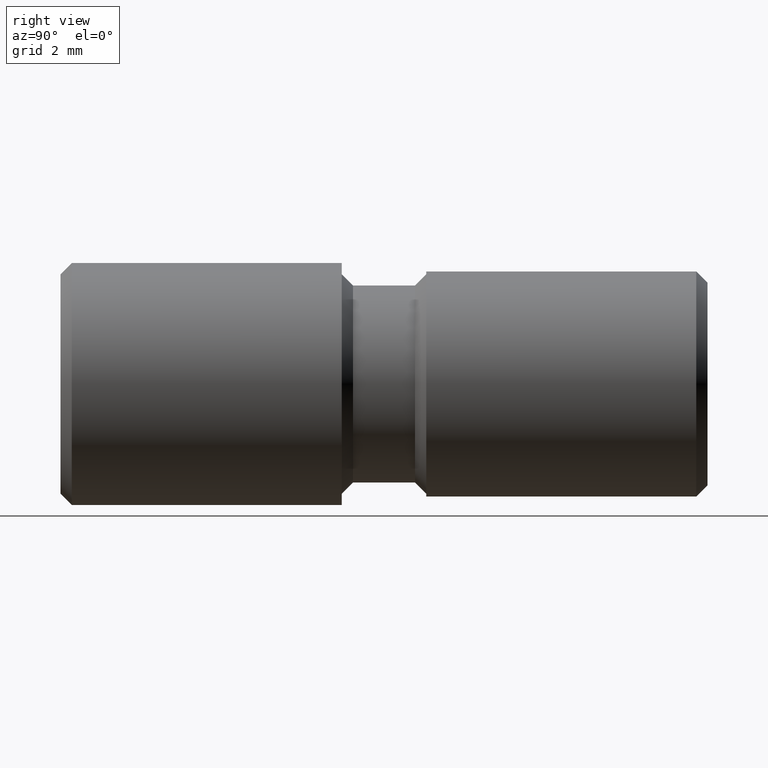
[diagram: clean part render]
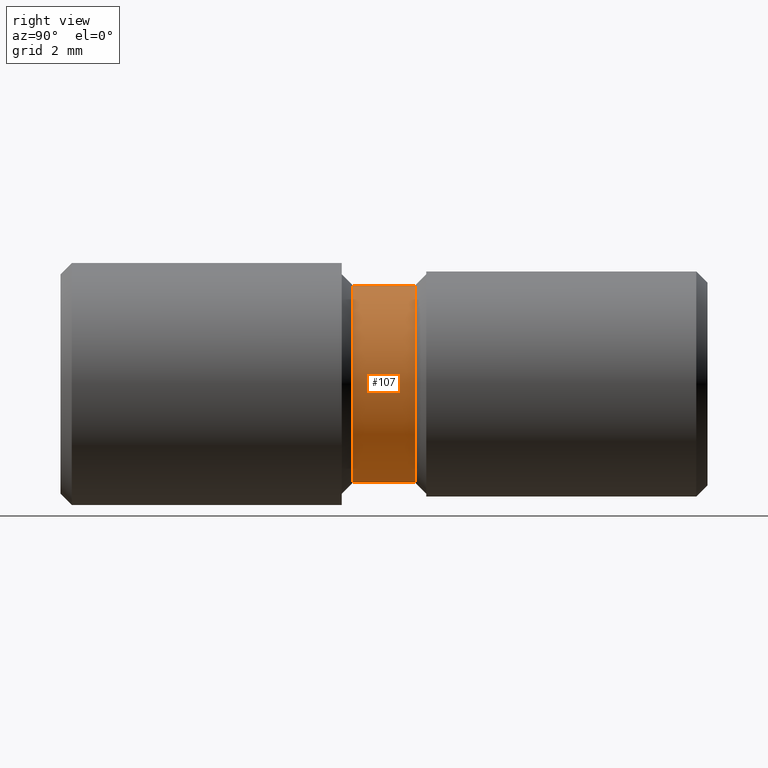
[diagram: same view with one face highlighted and labeled with its STEP entity id]
A machine part, right view. The second image highlights one B-rep face of the part: STEP entity #107.
In plain terms, the highlighted cylindrical surface (partial cylindrical patch) has radius 1.75 mm, axis along (-0, -1, -0).
Its self-contained STEP definition (entity closure, byte-faithful):
#31 = DIRECTION ( 'NONE',  ( 0.0000000000000000000, 0.0000000000000000000, -1.000000000000000000 ) ) ;
#58 = AXIS2_PLACEMENT_3D ( 'NONE', #720, #205, #942 ) ;
#86 = CARTESIAN_POINT ( 'NONE',  ( 0.0000000000000000000, 5.200000000000002800, 0.0000000000000000000 ) ) ;
#107 = ADVANCED_FACE ( 'NONE', ( #135 ), #211, .T. ) ;
#110 = CARTESIAN_POINT ( 'NONE',  ( 0.0000000000000000000, 6.300000000000001600, -1.750000000000000000 ) ) ;
#120 = ORIENTED_EDGE ( 'NONE', *, *, #946, .F. ) ;
#128 = VERTEX_POINT ( 'NONE', #110 ) ;
#135 = FACE_OUTER_BOUND ( 'NONE', #863, .T. ) ;
#154 = CARTESIAN_POINT ( 'NONE',  ( 0.0000000000000000000, 6.500000000000000900, 0.0000000000000000000 ) ) ;
#163 = CARTESIAN_POINT ( 'NONE',  ( 0.0000000000000000000, 6.500000000000000900, -1.750000000000000000 ) ) ;
#169 = CARTESIAN_POINT ( 'NONE',  ( 2.143131898507868300E-016, 5.200000000000002800, 1.750000000000000000 ) ) ;
#205 = DIRECTION ( 'NONE',  ( 0.0000000000000000000, -1.000000000000000000, 0.0000000000000000000 ) ) ;
#208 = CARTESIAN_POINT ( 'NONE',  ( 2.143131898507868300E-016, 6.300000000000001600, 1.750000000000000000 ) ) ;
#211 = CYLINDRICAL_SURFACE ( 'NONE', #501, 1.750000000000000000 ) ;
#284 = ORIENTED_EDGE ( 'NONE', *, *, #419, .T. ) ;
#308 = DIRECTION ( 'NONE',  ( 0.0000000000000000000, 0.0000000000000000000, 1.000000000000000000 ) ) ;
#311 = VERTEX_POINT ( 'NONE', #353 ) ;
#351 = EDGE_CURVE ( 'NONE', #436, #640, #474, .T. ) ;
#353 = CARTESIAN_POINT ( 'NONE',  ( 0.0000000000000000000, 5.200000000000002800, -1.750000000000000000 ) ) ;
#384 = DIRECTION ( 'NONE',  ( -0.0000000000000000000, 1.000000000000000000, -0.0000000000000000000 ) ) ;
#412 = DIRECTION ( 'NONE',  ( -0.0000000000000000000, -1.000000000000000000, -0.0000000000000000000 ) ) ;
#419 = EDGE_CURVE ( 'NONE', #128, #436, #618, .T. ) ;
#436 = VERTEX_POINT ( 'NONE', #208 ) ;
#474 = LINE ( 'NONE', #772, #862 ) ;
#491 = VECTOR ( 'NONE', #596, 1000.000000000000000 ) ;
#501 = AXIS2_PLACEMENT_3D ( 'NONE', #154, #917, #31 ) ;
#502 = ORIENTED_EDGE ( 'NONE', *, *, #864, .T. ) ;
#571 = AXIS2_PLACEMENT_3D ( 'NONE', #86, #384, #308 ) ;
#584 = CIRCLE ( 'NONE', #571, 1.750000000000000000 ) ;
#596 = DIRECTION ( 'NONE',  ( -0.0000000000000000000, -1.000000000000000000, -0.0000000000000000000 ) ) ;
#618 = CIRCLE ( 'NONE', #58, 1.750000000000000000 ) ;
#640 = VERTEX_POINT ( 'NONE', #169 ) ;
#646 = LINE ( 'NONE', #163, #491 ) ;
#720 = CARTESIAN_POINT ( 'NONE',  ( 0.0000000000000000000, 6.300000000000001600, 0.0000000000000000000 ) ) ;
#772 = CARTESIAN_POINT ( 'NONE',  ( 2.143131898507868300E-016, 6.500000000000000900, 1.750000000000000000 ) ) ;
#827 = ORIENTED_EDGE ( 'NONE', *, *, #351, .T. ) ;
#862 = VECTOR ( 'NONE', #412, 1000.000000000000000 ) ;
#863 = EDGE_LOOP ( 'NONE', ( #284, #827, #502, #120 ) ) ;
#864 = EDGE_CURVE ( 'NONE', #640, #311, #584, .T. ) ;
#917 = DIRECTION ( 'NONE',  ( -0.0000000000000000000, -1.000000000000000000, -0.0000000000000000000 ) ) ;
#942 = DIRECTION ( 'NONE',  ( 0.0000000000000000000, 0.0000000000000000000, 1.000000000000000000 ) ) ;
#946 = EDGE_CURVE ( 'NONE', #128, #311, #646, .T. ) ;